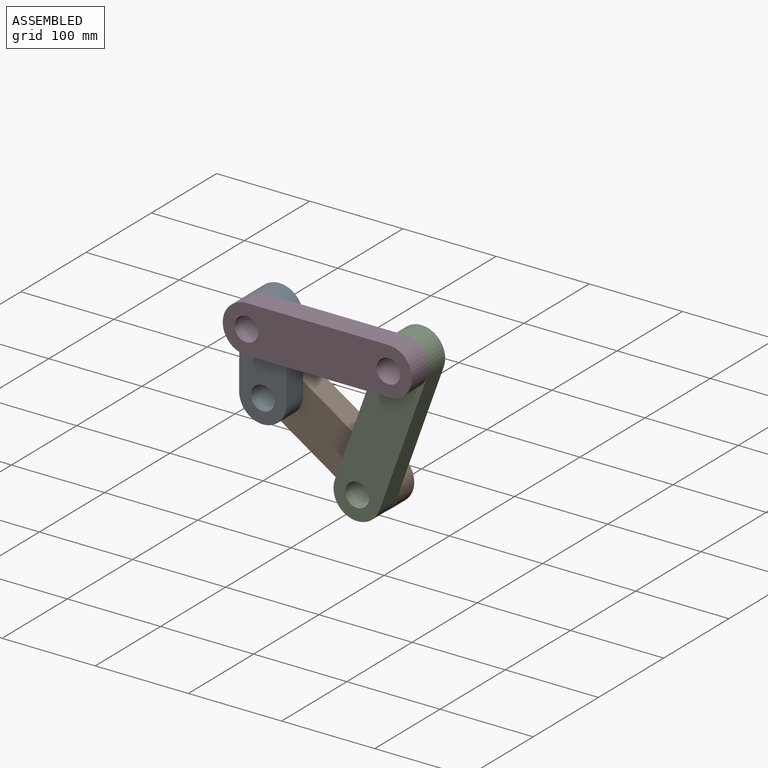
[diagram: assembled view]
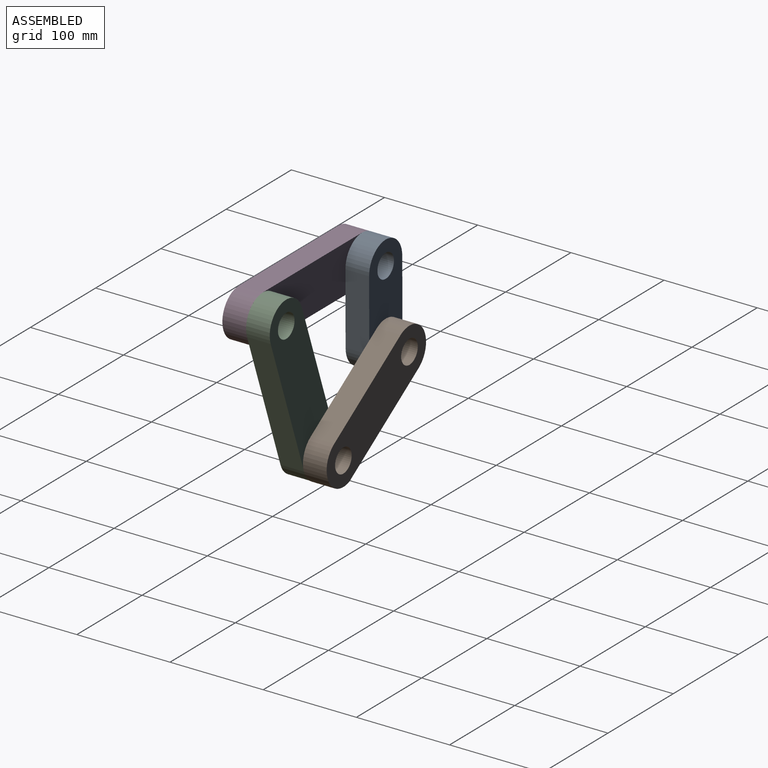
[diagram: assembled view, second angle]
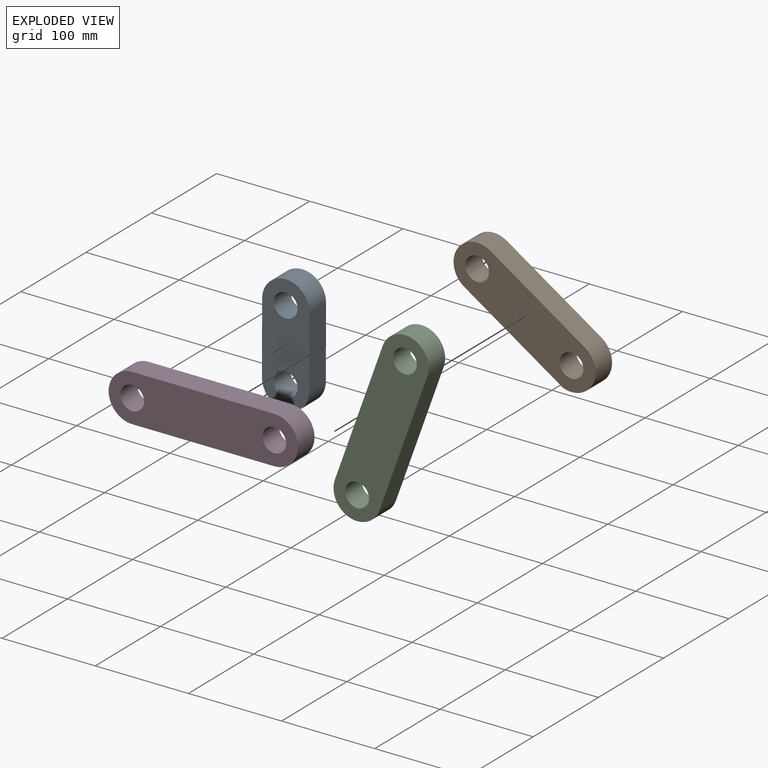
[diagram: exploded view]
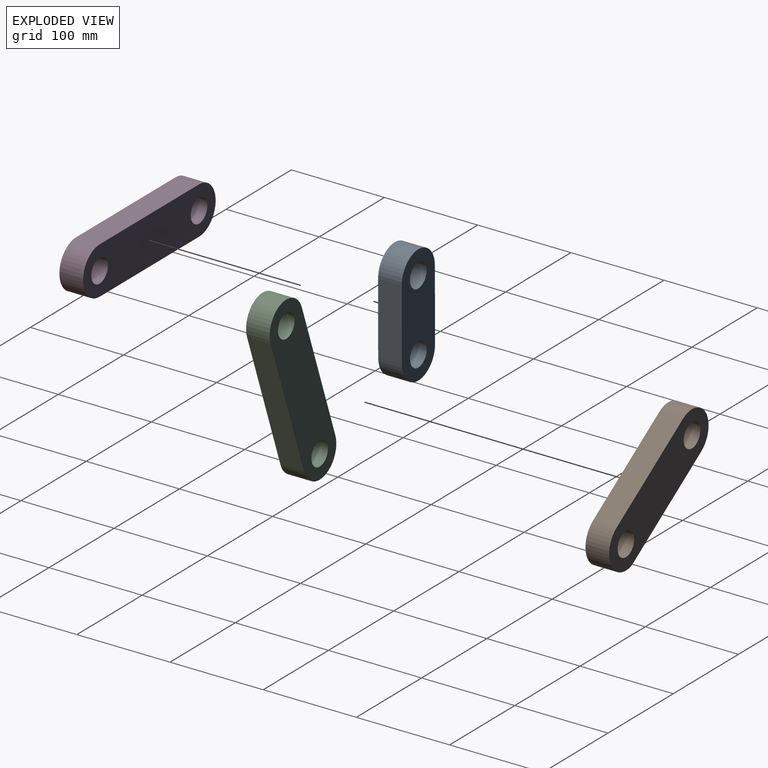
[diagram: exploded view, second angle]
ASSEMBLY  parts=4 mates=8
PART A: 8 faces, bbox 127.5x25.4x50.8 mm
  f0: cylinder r=25.4mm len=50.8mm, axis (0,1,0), area 2039.2mm2, adj f1,f5,f6,f7
  f1: plane 77.64x25.4mm, normal (0,0,-1), area 1972mm2, adj f0,f2,f6,f7
  f2: cylinder r=25.41mm len=50.8mm, axis (0,1,0), area 2003.2mm2, adj f1,f5,f6,f7
  f3: cylinder r=12.7mm len=25.4mm, axis (0,1,0), area 2026.8mm2, adj f6,f7
  f4: cylinder r=12.7mm len=25.4mm, axis (0,1,0), area 2026.8mm2, adj f6,f7
  f5: plane 76.2x25.4mm, normal (0,0,1), area 1935.5mm2, adj f0,f2,f6,f7
  f6: plane 127.49x50.8mm, normal (0,-1,0), area 4909.6mm2, adj f0,f1,f2,f3,f4,f5
  f7: plane 127.49x50.8mm, normal (0,1,0), area 4909.6mm2, adj f0,f1,f2,f3,f4,f5
PART B: 8 faces, bbox 172.5x25.4x50.8 mm
  f0: cylinder r=25.4mm len=50.8mm, axis (0,1,0), area 2015.9mm2, adj f1,f5,f6,f7
  f1: plane 127x25.4mm, normal (0,0,-1), area 3225.8mm2, adj f0,f2,f6,f7
  f2: cylinder r=25.71mm len=50.8mm, axis (0,1,0), area 1907.3mm2, adj f1,f5,f6,f7
  f3: cylinder r=12.7mm len=25.4mm, axis (0,1,0), area 2026.8mm2, adj f6,f7
  f4: cylinder r=12.7mm len=25.4mm, axis (0,1,0), area 2026.8mm2, adj f6,f7
  f5: plane 121.79x25.4mm, normal (0,0,1), area 3093.5mm2, adj f0,f2,f6,f7
  f6: plane 172.47x50.8mm, normal (0,-1,0), area 7201.2mm2, adj f0,f1,f2,f3,f4,f5
  f7: plane 172.47x50.8mm, normal (0,1,0), area 7201.2mm2, adj f0,f1,f2,f3,f4,f5
PART C: 8 faces, bbox 203.2x25.4x50.8 mm
  f0: cylinder r=25.4mm len=50.8mm, axis (0,1,0), area 2026.8mm2, adj f1,f5,f6,f7
  f1: plane 152.4x25.4mm, normal (0,0,-1), area 3871mm2, adj f0,f2,f6,f7
  f2: cylinder r=25.4mm len=50.8mm, axis (0,1,0), area 2026.8mm2, adj f1,f5,f6,f7
  f3: cylinder r=12.7mm len=25.4mm, axis (0,1,0), area 2026.8mm2, adj f6,f7
  f4: cylinder r=12.7mm len=25.4mm, axis (0,1,0), area 2026.8mm2, adj f6,f7
  f5: plane 152.4x25.4mm, normal (0,0,1), area 3871mm2, adj f0,f2,f6,f7
  f6: plane 203.2x50.8mm, normal (0,-1,0), area 8755.3mm2, adj f0,f1,f2,f3,f4,f5
  f7: plane 203.2x50.8mm, normal (0,1,0), area 8755.3mm2, adj f0,f1,f2,f3,f4,f5
PART D: same geometry as C
PLACE A rot(axis=(0,1,0),90.1deg) t=(-104.83,95.86,-96.74)mm
PLACE B rot(axis=(0,1,0),33.3deg) t=(-64.23,121.26,-187.53)mm
PLACE C rot(axis=(0,-1,0),70.3deg) t=(51.16,95.86,-207.09)mm
PLACE D t=(-63.03,70.46,-95.81)mm fixed
MATE ball B.f2 <-> C.f0  axis (0,-1,0) through (21.74,95.86,-213.92)mm
MATE cylindrical A.f0 <-> D.f0  axis (0,-1,0) through (-79.37,70.46,-70.41)mm
MATE pin_slot B.f0 <-> A.f2  axis (0,-1,0) through (-79.55,95.86,-147.09)mm
MATE pin_slot B.f2 <-> C.f0  axis (0,-1,0) through (21.74,95.86,-213.92)mm
MATE cylindrical C.f2 <-> D.f2  axis (0,-1,0) through (73.03,70.46,-70.41)mm
MATE pin_slot C.f2 <-> D.f2  axis (0,-1,0) through (73.03,70.46,-70.41)mm
MATE pin_slot A.f0 <-> D.f0  axis (0,-1,0) through (-79.37,70.46,-70.41)mm
MATE ball A.f2 <-> B.f0  axis (0,1,0) through (-79.55,95.86,-147.09)mm
